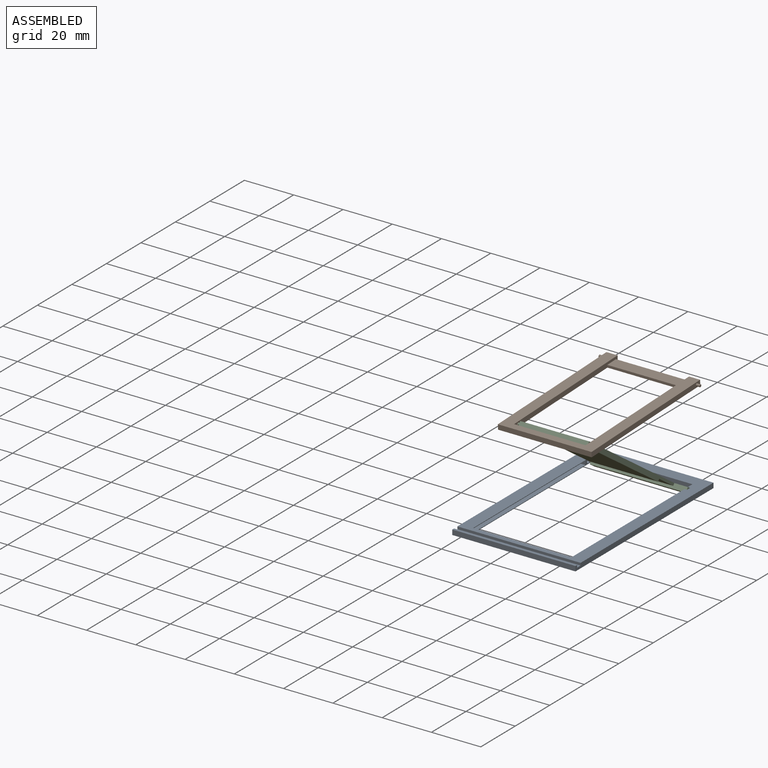
[diagram: assembled view]
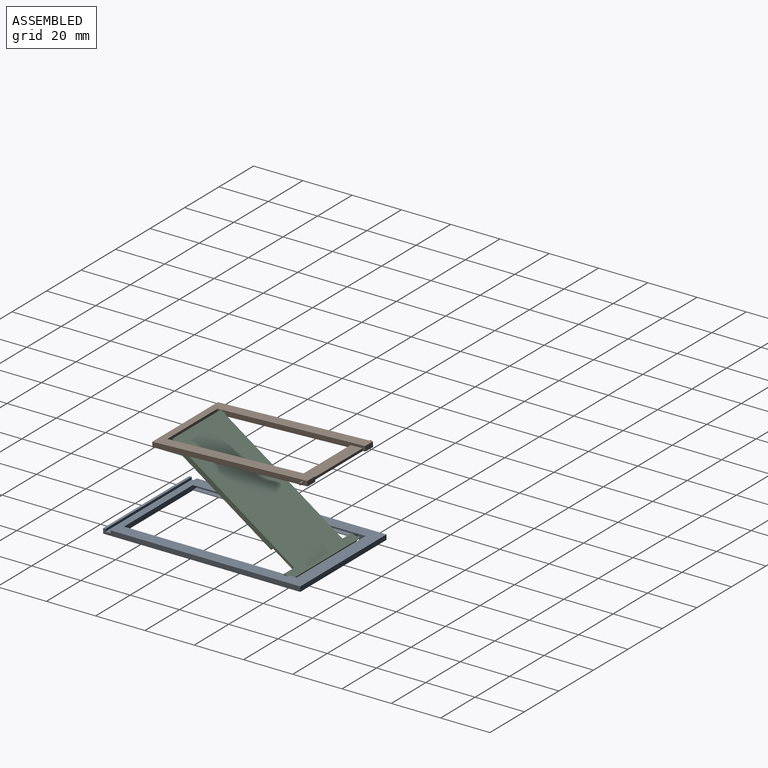
[diagram: assembled view, second angle]
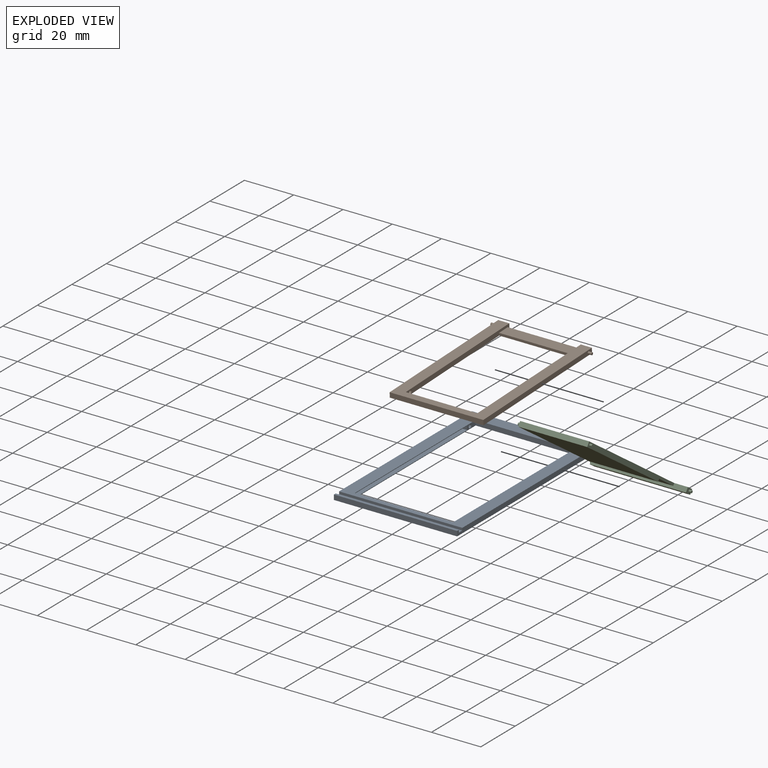
[diagram: exploded view]
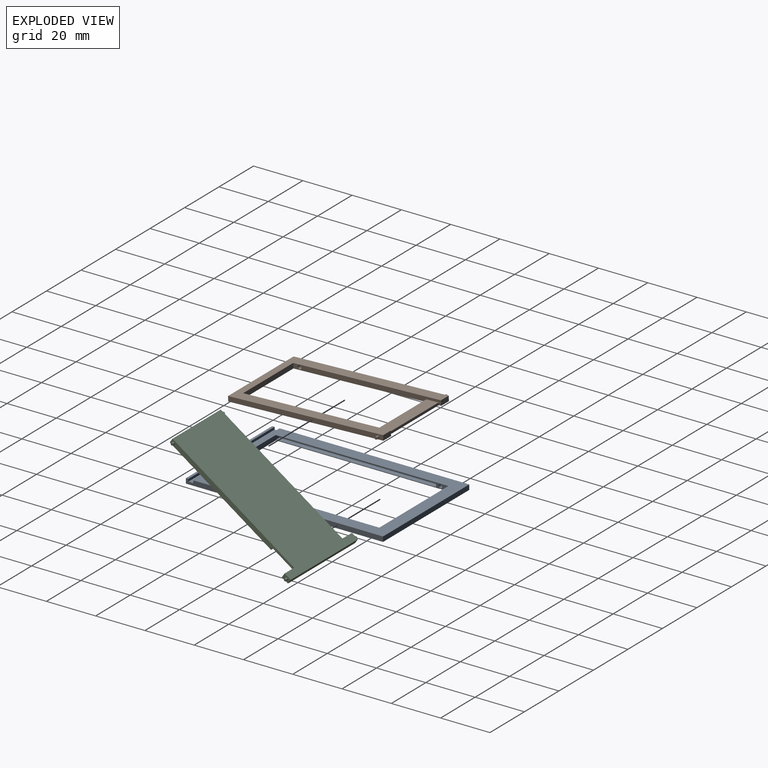
[diagram: exploded view, second angle]
ASSEMBLY  parts=3 mates=2
PART A: 26 faces, bbox 50x80x2 mm
  f0: plane 50x1mm, normal (0,0,1), area 50mm2, adj f1,f4,f8,f25
  f1: plane 80x2mm, normal (-1,0,0), area 158mm2, adj f0,f3,f4,f9,f10,f23,f24,f25
  f2: plane 70x2mm, normal (-1,0,0), area 40.7mm2, adj f6,f7,f9,f10,f13,f19,f20,f21
  f3: plane 50x2mm, normal (0,1,0), area 100mm2, adj f1,f8,f9,f10
  f4: plane 50x2mm, normal (0,-1,0), area 100mm2, adj f0,f1,f8,f10
  f5: plane 70x2mm, normal (1,0,0), area 40.7mm2, adj f6,f7,f9,f10,f11,f15,f16,f17
  f6: plane 40x2mm, normal (0,-1,0), area 80mm2, adj f2,f5,f9,f10
  f7: plane 44x2mm, normal (0,1,0), area 86mm2, adj f2,f5,f9,f10,f16,f17,f18,f20
  f8: plane 80x2mm, normal (1,0,0), area 158mm2, adj f0,f3,f4,f9,f10,f23,f24,f25
  f9: plane 77x50mm, normal (0,0,1), area 1050mm2, adj f1,f2,f3,f5,f6,f7,f8,f23
  f10: plane 80x50mm, normal (0,0,-1), area 1200mm2, adj f1,f2,f3,f4,f5,f6,f7,f8
  f11: cylinder r=0.75mm len=2mm, axis (1,0,0), area 9.4mm2, adj f5,f12
  f12: plane 1.5x1.5mm, normal (1,0,0), area 1.8mm2, adj f11
  f13: cylinder r=0.75mm len=2mm, axis (-1,0,0), area 9.4mm2, adj f2,f14
  f14: plane 1.5x1.5mm, normal (-1,0,0), area 1.8mm2, adj f13
  f15: plane 2x1.5mm, normal (0,-1,0), area 3mm2, adj f5,f16,f17,f18
  f16: plane 65x2mm, normal (0,0,-1), area 130mm2, adj f5,f7,f15,f18
  f17: plane 65x2mm, normal (0,0,1), area 130mm2, adj f5,f7,f15,f18
  f18: plane 65x1.5mm, normal (1,0,0), area 97.5mm2, adj f7,f15,f16,f17
  f19: plane 2x1.5mm, normal (0,-1,0), area 3mm2, adj f2,f20,f21,f22
  f20: plane 65x2mm, normal (0,0,1), area 130mm2, adj f2,f7,f19,f22
  f21: plane 65x2mm, normal (0,0,-1), area 130mm2, adj f2,f7,f19,f22
  f22: plane 65x1.5mm, normal (-1,0,0), area 97.5mm2, adj f7,f19,f20,f21
  f23: plane 50x1mm, normal (0,-1,0), area 50mm2, adj f1,f8,f9,f24
  f24: plane 50x2mm, normal (0,0,1), area 100mm2, adj f1,f8,f23,f25
  f25: plane 50x1mm, normal (0,1,0), area 50mm2, adj f0,f1,f8,f24
PART B: 21 faces, bbox 41x63x2 mm
  f0: plane 60x2mm, normal (-1,0,0), area 113.2mm2, adj f6,f7,f8,f9,f10,f18,f19,f20
  f1: plane 60x2mm, normal (1,0,0), area 113.2mm2, adj f2,f7,f8,f9,f12,f18,f19,f20
  f2: plane 4.5x2mm, normal (0,1,0), area 9mm2, adj f1,f3,f8,f9
  f3: plane 63x2mm, normal (-1,0,0), area 125.2mm2, adj f2,f4,f8,f9,f14
  f4: plane 38x2mm, normal (0,-1,0), area 76mm2, adj f3,f5,f8,f9
  f5: plane 63x2mm, normal (1,0,0), area 125.2mm2, adj f4,f6,f8,f9,f16
  f6: plane 4.5x2mm, normal (0,1,0), area 9mm2, adj f0,f5,f8,f9
  f7: plane 29x2mm, normal (0,1,0), area 58mm2, adj f0,f1,f8,f9
  f8: plane 63x38mm, normal (0,0,1), area 654mm2, adj f0,f1,f2,f3,f4,f5,f6,f7
  f9: plane 63x38mm, normal (0,0,-1), area 799mm2, adj f0,f1,f2,f3,f4,f5,f6,f7
  f10: cylinder r=0.75mm len=2mm, axis (-1,0,0), area 9.4mm2, adj f0,f11
  f11: plane 1.5x1.5mm, normal (-1,0,0), area 1.8mm2, adj f10
  f12: cylinder r=0.75mm len=2mm, axis (1,0,0), area 9.4mm2, adj f1,f13
  f13: plane 1.5x1.5mm, normal (1,0,0), area 1.8mm2, adj f12
  f14: cylinder r=0.5mm len=1.5mm, axis (1,0,0), area 4.7mm2, adj f3,f15
  f15: plane 1x1mm, normal (-1,0,0), area 0.8mm2, adj f14
  f16: cylinder r=0.5mm len=1.5mm, axis (-1,0,0), area 4.7mm2, adj f5,f17
  f17: plane 1x1mm, normal (1,0,0), area 0.8mm2, adj f16
  f18: plane 29x1mm, normal (0,1,0), area 29mm2, adj f0,f1,f9,f19
  f19: plane 29x5mm, normal (0,0,1), area 145mm2, adj f0,f1,f18,f20
  f20: plane 29x1mm, normal (0,-1,0), area 29mm2, adj f0,f1,f9,f19
PART C: 20 faces, bbox 41x63x2 mm
  f0: plane 60x2mm, normal (-1,0,0), area 109.2mm2, adj f4,f6,f8,f9,f16,f18,f19
  f1: plane 39x3mm, normal (0,0,-1), area 117mm2, adj f2,f3,f6,f7
  f2: plane 39x2mm, normal (0,1,0), area 78mm2, adj f1,f3,f7,f8
  f3: plane 3x2mm, normal (-1,0,0), area 5.2mm2, adj f1,f2,f6,f8,f12
  f4: plane 28x2mm, normal (0,-1,0), area 56mm2, adj f0,f5,f8,f9
  f5: plane 60x2mm, normal (1,0,0), area 109.2mm2, adj f4,f6,f8,f9,f14,f18,f19
  f6: plane 39x2mm, normal (0,-1,0), area 50mm2, adj f0,f1,f3,f5,f7,f8,f18
  f7: plane 3x2mm, normal (1,0,0), area 5.2mm2, adj f1,f2,f6,f8,f10
  f8: plane 63x39mm, normal (0,0,1), area 1797mm2, adj f0,f2,f3,f4,f5,f6,f7
  f9: plane 50x28mm, normal (0,0,-1), area 1400mm2, adj f0,f4,f5,f19
  f10: cylinder r=0.5mm len=1mm, axis (-1,0,0), area 3.1mm2, adj f7,f11
  f11: plane 1x1mm, normal (1,0,0), area 0.8mm2, adj f10
  f12: cylinder r=0.5mm len=1mm, axis (1,0,0), area 3.1mm2, adj f3,f13
  f13: plane 1x1mm, normal (-1,0,0), area 0.8mm2, adj f12
  f14: cylinder r=0.5mm len=1mm, axis (-1,0,0), area 3.1mm2, adj f5,f15
  f15: plane 1x1mm, normal (1,0,0), area 0.8mm2, adj f14
  f16: cylinder r=0.5mm len=1mm, axis (1,0,0), area 3.1mm2, adj f0,f17
  f17: plane 1x1mm, normal (-1,0,0), area 0.8mm2, adj f16
  f18: plane 28x10mm, normal (0,0,-1), area 280mm2, adj f0,f5,f6,f19
  f19: plane 28x1mm, normal (0,1,0), area 28mm2, adj f0,f5,f9,f18
PLACE A t=(-58.87,81,36.3)mm fixed
PLACE B rot(axis=(1,0,0),2.2deg) t=(-73.81,146.94,72.94)mm
PLACE C rot(axis=(-1,0,0),34.7deg) t=(-73.81,139.66,35.77)mm
MATE revolute C.f10 <-> A.f13  axis (1,0,0) through (-33.81,139.2,37.3)mm
MATE revolute C.f14 <-> B.f10  axis (-1,0,0) through (-69.31,89.44,71.71)mm
